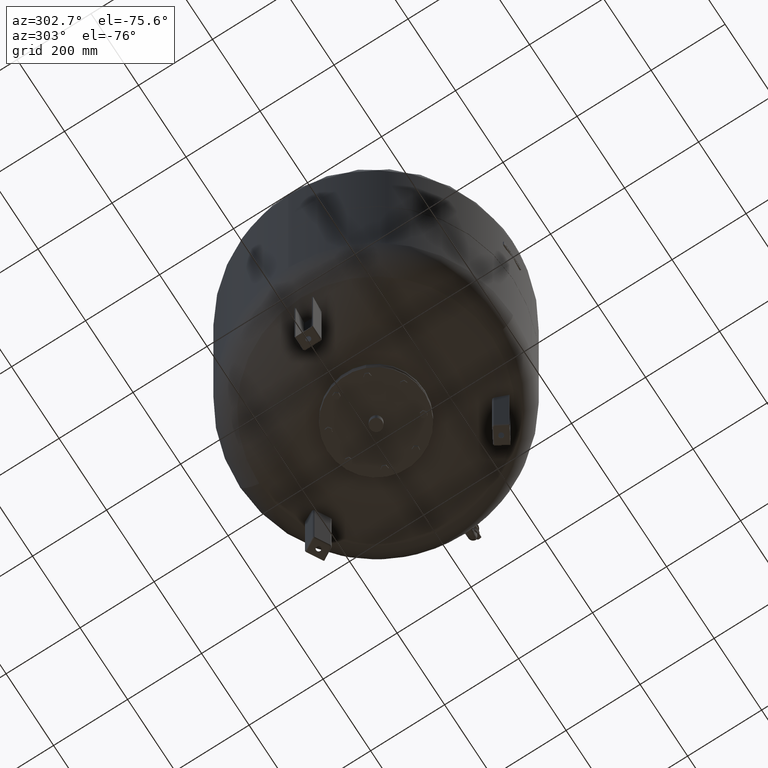
[diagram: clean part render]
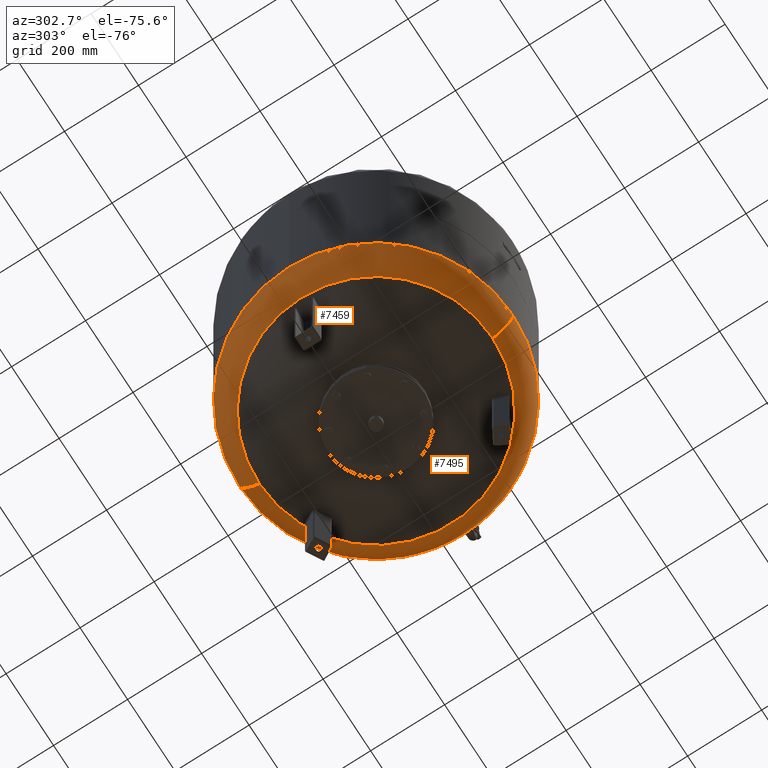
[diagram: same view with one multi-face feature highlighted, each face labeled with its STEP entity id]
A machine part, auxiliary view. The highlighted faces form ONE feature: a constant-radius fillet chain: 2 tangent blend faces with common blend radius 115.5 mm. The faces share edges in the B-rep.
Their STEP definitions:
[1] entity #7495 (Torus):
#7381=CARTESIAN_POINT('',(370.0,1.062956E-014,372.793879611869560));
#7382=VERTEX_POINT('',#7381);
#7389=CARTESIAN_POINT('',(-4.531044E-014,369.999999999999940,372.793879611869610));
#7390=VERTEX_POINT('',#7389);
#7391=CARTESIAN_POINT('',(0.0,-3.468087E-014,372.793879611869560));
#7392=DIRECTION('',(0.0,0.0,1.0));
#7393=DIRECTION('',(-1.0,0.0,0.0));
#7394=AXIS2_PLACEMENT_3D('',#7391,#7392,#7393);
#7395=CIRCLE('',#7394,370.0);
#7396=EDGE_CURVE('',#7382,#7390,#7395,.T.);
#7413=CARTESIAN_POINT('',(0.0,-370.000000000000060,372.793879611869500));
#7414=VERTEX_POINT('',#7413);
#7415=CARTESIAN_POINT('',(0.0,-315.931034482758610,274.985505725079410));
#7416=VERTEX_POINT('',#7415);
#7417=CARTESIAN_POINT('',(0.0,-254.500000000000060,372.793879611869500));
#7418=DIRECTION('',(1.0,0.0,0.0));
#7419=DIRECTION('',(0.0,-1.0,0.0));
#7420=AXIS2_PLACEMENT_3D('',#7417,#7418,#7419);
#7421=CIRCLE('',#7420,115.500000000000000);
#7422=EDGE_CURVE('',#7414,#7416,#7421,.T.);
#7432=CARTESIAN_POINT('',(-3.868912E-014,315.931034482758610,274.985505725079630));
#7433=VERTEX_POINT('',#7432);
#7434=CARTESIAN_POINT('',(-3.116623E-014,254.500000000000000,372.793879611869610));
#7435=DIRECTION('',(-1.0,0.0,0.0));
#7436=DIRECTION('',(0.0,1.0,0.0));
#7437=AXIS2_PLACEMENT_3D('',#7434,#7435,#7436);
#7438=CIRCLE('',#7437,115.500000000000000);
#7439=EDGE_CURVE('',#7390,#7433,#7438,.T.);
#7467=CARTESIAN_POINT('',(0.0,-1.671377E-014,274.985505725079520));
#7468=DIRECTION('',(0.0,0.0,1.0));
#7469=DIRECTION('',(-1.0,0.0,0.0));
#7470=AXIS2_PLACEMENT_3D('',#7467,#7468,#7469);
#7471=CIRCLE('',#7470,315.931034482758610);
#7472=EDGE_CURVE('',#7416,#7433,#7471,.T.);
#7477=CARTESIAN_POINT('',(0.0,-3.468087E-014,372.793879611869560));
#7478=DIRECTION('',(0.0,-1.836970E-016,1.0));
#7479=DIRECTION('',(0.0,-1.0,0.0));
#7480=AXIS2_PLACEMENT_3D('',#7477,#7478,#7479);
#7481=TOROIDAL_SURFACE('',#7480,254.500000000000030,115.500000000000000);
#7482=ORIENTED_EDGE('',*,*,#7422,.T.);
#7483=ORIENTED_EDGE('',*,*,#7472,.T.);
#7484=ORIENTED_EDGE('',*,*,#7439,.F.);
#7485=ORIENTED_EDGE('',*,*,#7396,.F.);
#7486=CARTESIAN_POINT('',(0.0,-3.468087E-014,372.793879611869560));
#7487=DIRECTION('',(0.0,0.0,1.0));
#7488=DIRECTION('',(-1.0,0.0,0.0));
#7489=AXIS2_PLACEMENT_3D('',#7486,#7487,#7488);
#7490=CIRCLE('',#7489,370.0);
#7491=EDGE_CURVE('',#7414,#7382,#7490,.T.);
#7492=ORIENTED_EDGE('',*,*,#7491,.F.);
#7493=EDGE_LOOP('',(#7482,#7483,#7484,#7485,#7492));
#7494=FACE_OUTER_BOUND('',#7493,.T.);
#7495=ADVANCED_FACE('',(#7494),#7481,.T.);
[2] entity #7459 (Torus):
#7364=CARTESIAN_POINT('',(-370.0,-3.468087E-014,372.793879611869560));
#7365=VERTEX_POINT('',#7364);
#7389=CARTESIAN_POINT('',(-4.531044E-014,369.999999999999940,372.793879611869610));
#7390=VERTEX_POINT('',#7389);
#7398=CARTESIAN_POINT('',(0.0,-3.468087E-014,372.793879611869560));
#7399=DIRECTION('',(0.0,0.0,1.0));
#7400=DIRECTION('',(-1.0,0.0,0.0));
#7401=AXIS2_PLACEMENT_3D('',#7398,#7399,#7400);
#7402=CIRCLE('',#7401,370.0);
#7403=EDGE_CURVE('',#7390,#7365,#7402,.T.);
#7408=CARTESIAN_POINT('',(0.0,-3.468087E-014,372.793879611869560));
#7409=DIRECTION('',(0.0,-1.836970E-016,1.0));
#7410=DIRECTION('',(0.0,-1.0,0.0));
#7411=AXIS2_PLACEMENT_3D('',#7408,#7409,#7410);
#7412=TOROIDAL_SURFACE('',#7411,254.500000000000030,115.500000000000000);
#7413=CARTESIAN_POINT('',(0.0,-370.000000000000060,372.793879611869500));
#7414=VERTEX_POINT('',#7413);
#7415=CARTESIAN_POINT('',(0.0,-315.931034482758610,274.985505725079410));
#7416=VERTEX_POINT('',#7415);
#7417=CARTESIAN_POINT('',(0.0,-254.500000000000060,372.793879611869500));
#7418=DIRECTION('',(1.0,0.0,0.0));
#7419=DIRECTION('',(0.0,-1.0,0.0));
#7420=AXIS2_PLACEMENT_3D('',#7417,#7418,#7419);
#7421=CIRCLE('',#7420,115.500000000000000);
#7422=EDGE_CURVE('',#7414,#7416,#7421,.T.);
#7423=ORIENTED_EDGE('',*,*,#7422,.F.);
#7424=CARTESIAN_POINT('',(0.0,-3.468087E-014,372.793879611869560));
#7425=DIRECTION('',(0.0,0.0,1.0));
#7426=DIRECTION('',(-1.0,0.0,0.0));
#7427=AXIS2_PLACEMENT_3D('',#7424,#7425,#7426);
#7428=CIRCLE('',#7427,370.0);
#7429=EDGE_CURVE('',#7365,#7414,#7428,.T.);
#7430=ORIENTED_EDGE('',*,*,#7429,.F.);
#7431=ORIENTED_EDGE('',*,*,#7403,.F.);
#7432=CARTESIAN_POINT('',(-3.868912E-014,315.931034482758610,274.985505725079630));
#7433=VERTEX_POINT('',#7432);
#7434=CARTESIAN_POINT('',(-3.116623E-014,254.500000000000000,372.793879611869610));
#7435=DIRECTION('',(-1.0,0.0,0.0));
#7436=DIRECTION('',(0.0,1.0,0.0));
#7437=AXIS2_PLACEMENT_3D('',#7434,#7435,#7436);
#7438=CIRCLE('',#7437,115.500000000000000);
#7439=EDGE_CURVE('',#7390,#7433,#7438,.T.);
#7440=ORIENTED_EDGE('',*,*,#7439,.T.);
#7441=CARTESIAN_POINT('',(-315.931034482758610,-1.671377E-014,274.985505725079520));
#7442=VERTEX_POINT('',#7441);
#7443=CARTESIAN_POINT('',(0.0,-1.671377E-014,274.985505725079520));
#7444=DIRECTION('',(0.0,0.0,1.0));
#7445=DIRECTION('',(-1.0,0.0,0.0));
#7446=AXIS2_PLACEMENT_3D('',#7443,#7444,#7445);
#7447=CIRCLE('',#7446,315.931034482758610);
#7448=EDGE_CURVE('',#7433,#7442,#7447,.T.);
#7449=ORIENTED_EDGE('',*,*,#7448,.T.);
#7450=CARTESIAN_POINT('',(0.0,-1.671377E-014,274.985505725079520));
#7451=DIRECTION('',(0.0,0.0,1.0));
#7452=DIRECTION('',(-1.0,0.0,0.0));
#7453=AXIS2_PLACEMENT_3D('',#7450,#7451,#7452);
#7454=CIRCLE('',#7453,315.931034482758610);
#7455=EDGE_CURVE('',#7442,#7416,#7454,.T.);
#7456=ORIENTED_EDGE('',*,*,#7455,.T.);
#7457=EDGE_LOOP('',(#7423,#7430,#7431,#7440,#7449,#7456));
#7458=FACE_OUTER_BOUND('',#7457,.T.);
#7459=ADVANCED_FACE('',(#7458),#7412,.T.);